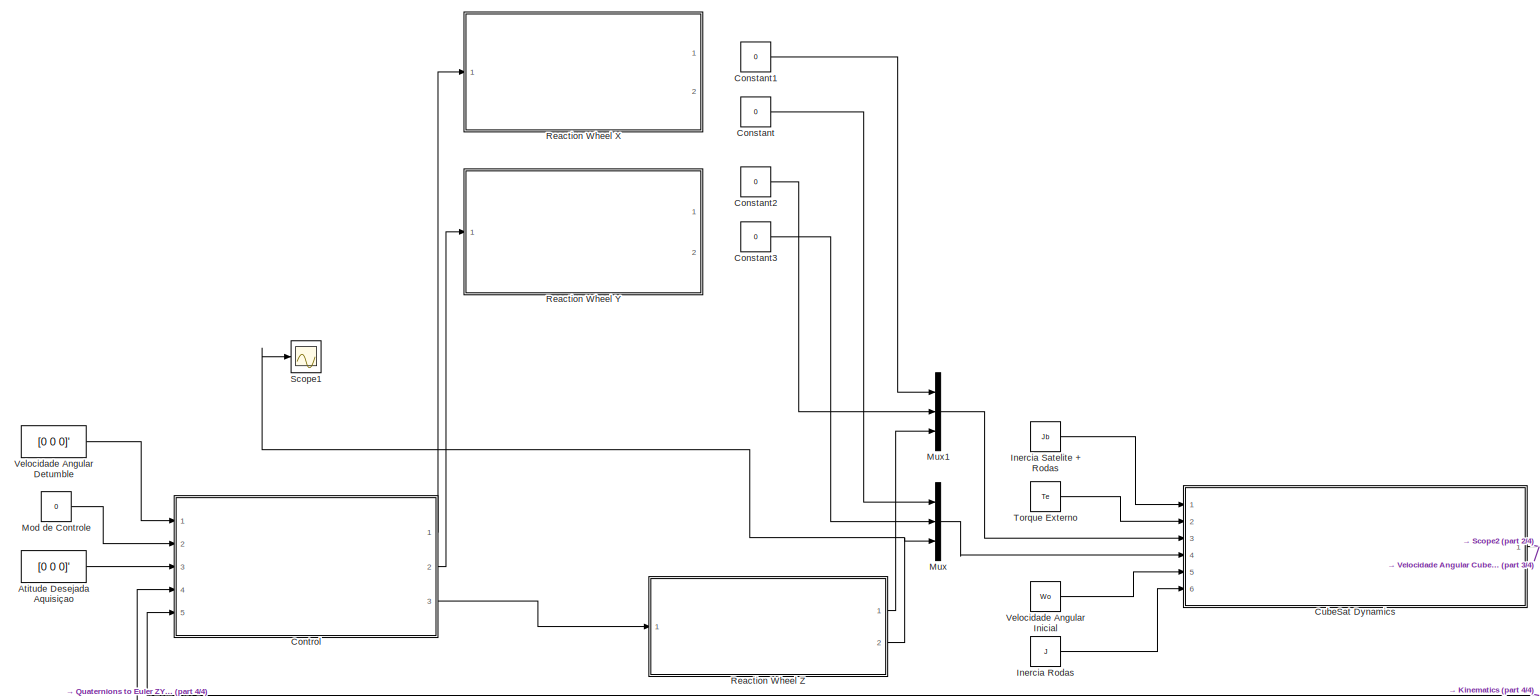
[diagram: root canvas - part 1/4, full width, middle band]
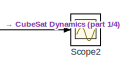
[diagram: root canvas - part 2/4, middle right region]
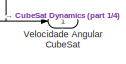
[diagram: root canvas - part 3/4, middle right region]
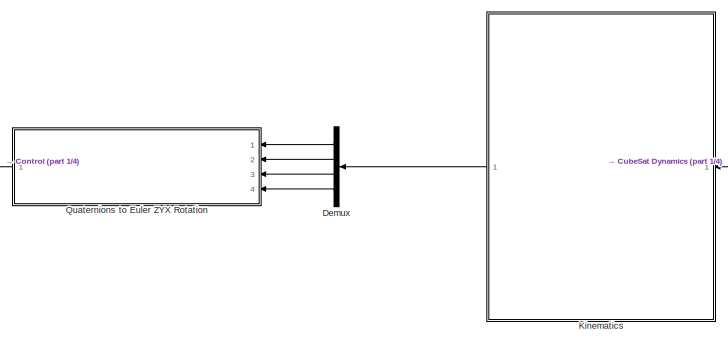
[diagram: root canvas - part 4/4, bottom center region]
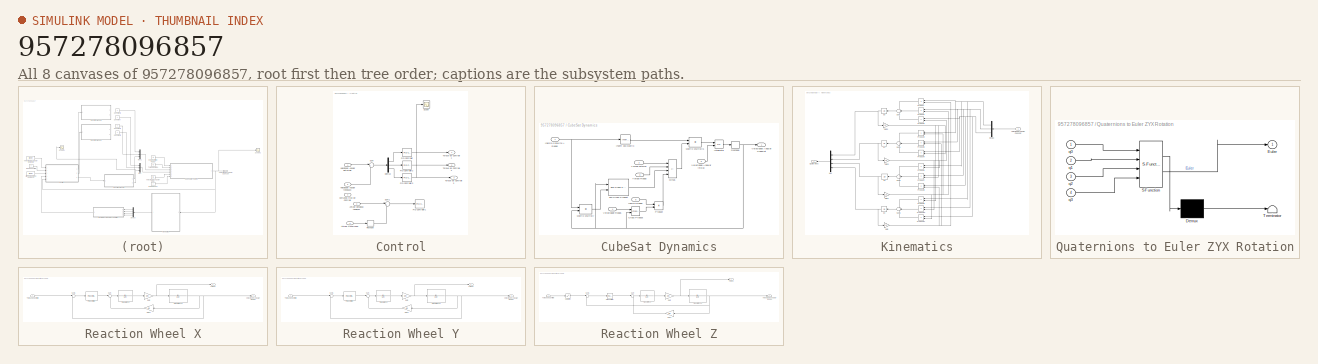
[diagram: thumbnail index - all 8 canvases of the model, root first then tree order]
MODEL slx_957278096857
KIND model
CONFIG AbsTol = auto
CONFIG EnableMultiTasking = off
CONFIG FixedStep = auto
CONFIG MaxStep = auto
CONFIG MinStep = auto
CONFIG RelTol = 1e-3
CONFIG SampleTimeConstraint = Unconstrained
CONFIG Solver = VariableStepAuto
CONFIG SolverName = VariableStepAuto
CONFIG StartTime = 0.0
CONFIG StopTime = 10.0
BLOCK [Constant] Atitude Desejada Aquisiçao
  Value = [0 0 0]'
BLOCK [Constant] Constant
  Value = 0
BLOCK [Constant] Constant1
  Value = 0
BLOCK [Constant] Constant2
  Value = 0
BLOCK [Constant] Constant3
  Value = 0
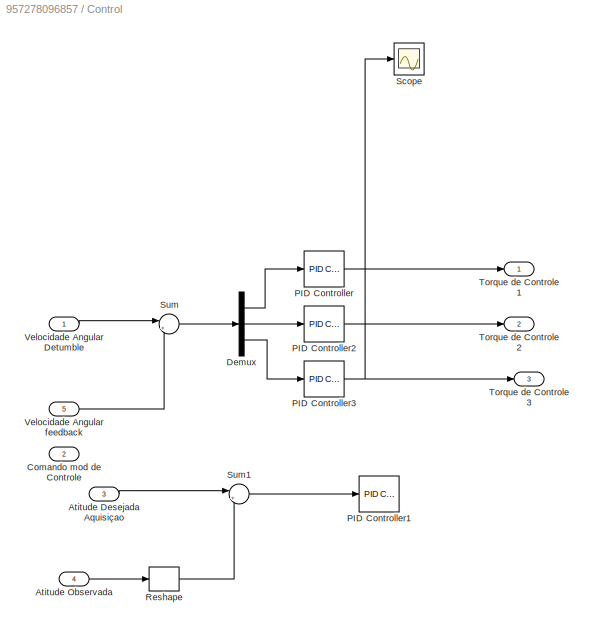
BLOCK [SubSystem] Control
  Ports = [5, 3]
  RequestExecContextInheritance = off
BLOCK [Inport] Control/Atitude Desejada Aquisiçao
  Port = 3
BLOCK [Inport] Control/Atitude Observada
  Port = 4
BLOCK [Inport] Control/Comando mod de Controle
  Port = 2
BLOCK [Demux] Control/Demux
  Outputs = 3
  Ports = [1, 3]
BLOCK [Reference] Control/PID Controller  REF=simulink/Continuous/PID Controller
  Ports = [1, 1]
  SourceBlock = simulink/Continuous/PID Controller
  SourceProductBaseCode = SL
  SourceType = PID 1dof
BLOCK [Reference] Control/PID Controller1  REF=simulink/Continuous/PID Controller
  Ports = [1, 1]
  SourceBlock = simulink/Continuous/PID Controller
  SourceProductBaseCode = SL
  SourceType = PID 1dof
BLOCK [Reference] Control/PID Controller2  REF=simulink/Continuous/PID Controller
  Ports = [1, 1]
  SourceBlock = simulink/Continuous/PID Controller
  SourceProductBaseCode = SL
  SourceType = PID 1dof
BLOCK [Reference] Control/PID Controller3  REF=simulink/Continuous/PID Controller
  Ports = [1, 1]
  SourceBlock = simulink/Continuous/PID Controller
  SourceProductBaseCode = SL
  SourceType = PID 1dof
BLOCK [Reshape] Control/Reshape
  OutputDimensionality = Column vector (2-D)
  Ports = [1, 1]
BLOCK [Scope] Control/Scope
  Floating = off
  NumInputPorts = 1
  Ports = [1]
  ScopeSpecificationString = Simulink.scopes.TimeScopeBlockCfg('CurrentConfiguration', extmgr.ConfigurationSet(extmgr.Configuration('Core','General UI',true),extmgr.Configuration('Core','Source UI',true),extmgr.Configuration('Sources','WiredSimulink',true,'DataLoggingVariableName','ScopeData1'),extmgr.Configuration('Visuals','Time Domain',true,'SerializedDisplays',{struct('MinYLimReal','1335691.72939','MaxYLimReal','1833959.8...<+1447ch>
BLOCK [Sum] Control/Sum
  Inputs = |+-
  Ports = [2, 1]
BLOCK [Sum] Control/Sum1
  Inputs = |+-
  Ports = [2, 1]
BLOCK [Outport] Control/Torque de Controle 1
BLOCK [Outport] Control/Torque de Controle 2
  Port = 2
BLOCK [Outport] Control/Torque de Controle 3
  Port = 3
BLOCK [Inport] Control/Velocidade Angular Detumble
BLOCK [Inport] Control/Velocidade Angular feedback
  Port = 5
BLOCK [SubSystem] CubeSat Dynamics
  Ports = [6, 1]
  RequestExecContextInheritance = off
BLOCK [Reference] CubeSat Dynamics/3x3 Cross Product  REF=sharedutil/3x3 Cross Product
  Ports = [2, 1]
  SourceBlock = sharedutil/3x3 Cross Product
  SourceProductBaseCode = AE,PW,MT,VE,VP
  SourceType = CrossProduct
BLOCK [Reference] CubeSat Dynamics/Cross Product  REF=vrlib/Utilities/Cross Product
  Ports = [2, 1]
  SourceBlock = vrlib/Utilities/Cross Product
  SourceProductBaseCode = SL
  SourceType = Cross Product
BLOCK [Inport] CubeSat Dynamics/Inercia Rodas
  Port = 6
BLOCK [Inport] CubeSat Dynamics/Inercia Satelite + Rodas
BLOCK [Integrator] CubeSat Dynamics/Integrator
  InitialConditionSource = external
  Ports = [2, 1]
BLOCK [Reference] CubeSat Dynamics/Invert 3x3 Matrix  REF=aerolibutil/Invert 
3x3 Matrix
  Ports = [1, 1]
  SourceBlock = aerolibutil/Invert \n3x3 Matrix
  SourceProductBaseCode = AE
  SourceType = Invert 3x3 Matrix
BLOCK [Product] CubeSat Dynamics/Matrix Multiply
  Multiplication = Matrix(*)
  Ports = [2, 1]
BLOCK [Product] CubeSat Dynamics/Matrix Multiply1
  Multiplication = Matrix(*)
  Ports = [2, 1]
BLOCK [Sum] CubeSat Dynamics/Minus
  IconShape = rectangular
  Inputs = +---
  Ports = [4, 1]
BLOCK [Product] CubeSat Dynamics/Product
  Ports = [2, 1]
BLOCK [Reshape] CubeSat Dynamics/Reshape
  OutputDimensionality = Column vector (2-D)
  OutputDimensions = [,1]
  Ports = [1, 1]
BLOCK [Inport] CubeSat Dynamics/Torque Rodas
  Port = 3
BLOCK [Inport] CubeSat Dynamics/Torque externo
  Port = 2
BLOCK [Outport] CubeSat Dynamics/Velocidade Angular CubeSat
BLOCK [Inport] CubeSat Dynamics/Velocidade Angular inicial
  Port = 5
BLOCK [Inport] CubeSat Dynamics/Velocidade Rodas
  Port = 4
BLOCK [Demux] Demux
  Ports = [1, 4]
BLOCK [Constant] Inercia Rodas
  Value = J
BLOCK [Constant] Inercia Satelite + Rodas
  Value = Jb
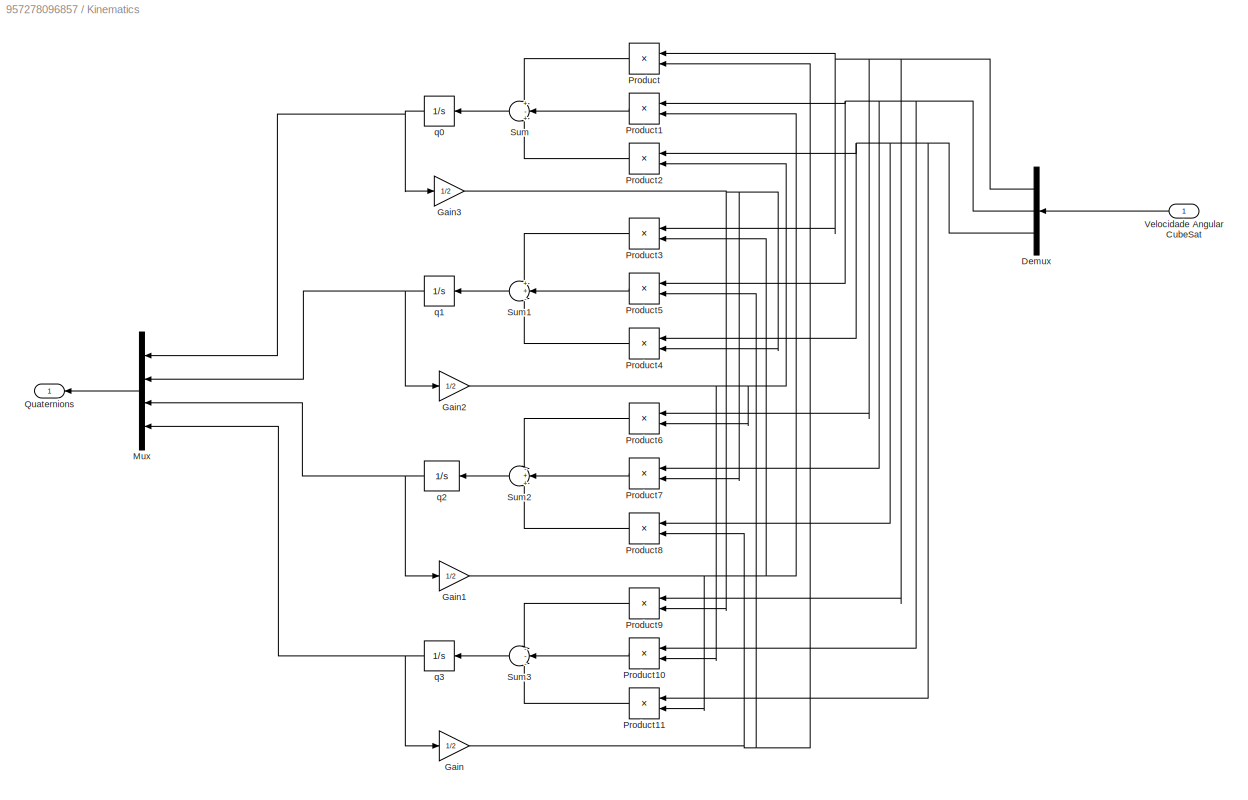
BLOCK [SubSystem] Kinematics
  Ports = [1, 1]
  RequestExecContextInheritance = off
BLOCK [Demux] Kinematics/Demux
  Outputs = 3
  Ports = [1, 3]
BLOCK [Gain] Kinematics/Gain
  Gain = 1/2
BLOCK [Gain] Kinematics/Gain1
  Gain = 1/2
BLOCK [Gain] Kinematics/Gain2
  Gain = 1/2
BLOCK [Gain] Kinematics/Gain3
  Gain = 1/2
BLOCK [Mux] Kinematics/Mux
  DisplayOption = bar
  Ports = [4, 1]
BLOCK [Product] Kinematics/Product
  Ports = [2, 1]
BLOCK [Product] Kinematics/Product1
  Ports = [2, 1]
BLOCK [Product] Kinematics/Product10
  Ports = [2, 1]
BLOCK [Product] Kinematics/Product11
  Ports = [2, 1]
BLOCK [Product] Kinematics/Product2
  Ports = [2, 1]
BLOCK [Product] Kinematics/Product3
  Ports = [2, 1]
BLOCK [Product] Kinematics/Product4
  Ports = [2, 1]
BLOCK [Product] Kinematics/Product5
  Ports = [2, 1]
BLOCK [Product] Kinematics/Product6
  Ports = [2, 1]
BLOCK [Product] Kinematics/Product7
  Ports = [2, 1]
BLOCK [Product] Kinematics/Product8
  Ports = [2, 1]
BLOCK [Product] Kinematics/Product9
  Ports = [2, 1]
BLOCK [Outport] Kinematics/Quaternions
BLOCK [Sum] Kinematics/Sum
  Inputs = +-+
  Ports = [3, 1]
BLOCK [Sum] Kinematics/Sum1
  Inputs = ++-
  Ports = [3, 1]
BLOCK [Sum] Kinematics/Sum2
  Inputs = -++
  Ports = [3, 1]
BLOCK [Sum] Kinematics/Sum3
  Inputs = ---
  Ports = [3, 1]
BLOCK [Inport] Kinematics/Velocidade Angular CubeSat
BLOCK [Integrator] Kinematics/q0
  InitialCondition = -1
  Ports = [1, 1]
BLOCK [Integrator] Kinematics/q1
  Ports = [1, 1]
BLOCK [Integrator] Kinematics/q2
  Ports = [1, 1]
BLOCK [Integrator] Kinematics/q3
  Ports = [1, 1]
BLOCK [Constant] Mod de Controle
  Value = 0
BLOCK [Mux] Mux
  DisplayOption = bar
  Inputs = 3
  Ports = [3, 1]
BLOCK [Mux] Mux1
  DisplayOption = bar
  Inputs = 3
  Ports = [3, 1]
BLOCK [SubSystem] Quaternions to Euler ZYX Rotation
  ErrorFcn = Stateflow.Translate.translate
  PermitHierarchicalResolution = ExplicitOnly
  Ports = [4, 1]
  RequestExecContextInheritance = off
  SFBlockType = MATLAB Function
  TreatAsAtomicUnit = on
BLOCK [Demux] Quaternions to Euler ZYX Rotation/ Demux 
  Outputs = 1
  Ports = [1, 1]
BLOCK [S-Function] Quaternions to Euler ZYX Rotation/ SFunction 
  EnableBusSupport = on
  FunctionName = sf_sfun
  PortCounts = [4 2]
  Ports = [4, 2]
  SFcnIsStateOwnerBlock = off
  SFunctionDeploymentMode = off
  Tag = Stateflow S-Function 2
BLOCK [Terminator] Quaternions to Euler ZYX Rotation/ Terminator 
BLOCK [Outport] Quaternions to Euler ZYX Rotation/Euler
BLOCK [Inport] Quaternions to Euler ZYX Rotation/q0
BLOCK [Inport] Quaternions to Euler ZYX Rotation/q1
  Port = 2
BLOCK [Inport] Quaternions to Euler ZYX Rotation/q2
  Port = 3
BLOCK [Inport] Quaternions to Euler ZYX Rotation/q3
  Port = 4
BLOCK [SubSystem] Reaction Wheel X
  Ports = [1, 2]
  RequestExecContextInheritance = off
BLOCK [Gain] Reaction Wheel X/Gain
  Gain = Km
BLOCK [Gain] Reaction Wheel X/Gain1
  Gain = Kb
  NameLocation = top
BLOCK [Reference] Reaction Wheel X/PID Controller  REF=simulink/Continuous/PID Controller
  Ports = [1, 1]
  SourceBlock = simulink/Continuous/PID Controller
  SourceProductBaseCode = SL
  SourceType = PID 1dof
BLOCK [Sum] Reaction Wheel X/Sum
  Inputs = |+-
  Ports = [2, 1]
BLOCK [Sum] Reaction Wheel X/Sum1
  Inputs = |+-
  Ports = [2, 1]
BLOCK [Outport] Reaction Wheel X/Torque
BLOCK [Inport] Reaction Wheel X/Torque de Controle
BLOCK [TransferFcn] Reaction Wheel X/Transfer Fcn
  Denominator = [L R]
BLOCK [TransferFcn] Reaction Wheel X/Transfer Fcn1
  Denominator = [J Kf]
BLOCK [Outport] Reaction Wheel X/Velocidade Angular Rodas
  Port = 2
BLOCK [SubSystem] Reaction Wheel Y
  Ports = [1, 2]
  RequestExecContextInheritance = off
BLOCK [Gain] Reaction Wheel Y/Gain
  Gain = Km
BLOCK [Gain] Reaction Wheel Y/Gain1
  Gain = Kb
  NameLocation = top
BLOCK [Reference] Reaction Wheel Y/PID Controller  REF=simulink/Continuous/PID Controller
  Ports = [1, 1]
  SourceBlock = simulink/Continuous/PID Controller
  SourceProductBaseCode = SL
  SourceType = PID 1dof
BLOCK [Sum] Reaction Wheel Y/Sum
  Inputs = |+-
  Ports = [2, 1]
BLOCK [Sum] Reaction Wheel Y/Sum1
  Inputs = |+-
  Ports = [2, 1]
BLOCK [Outport] Reaction Wheel Y/Torque
BLOCK [Inport] Reaction Wheel Y/Torque de Controle
BLOCK [TransferFcn] Reaction Wheel Y/Transfer Fcn
  Denominator = [L R]
BLOCK [TransferFcn] Reaction Wheel Y/Transfer Fcn1
  Denominator = [J Kf]
BLOCK [Outport] Reaction Wheel Y/Velocidade Angular Rodas
  Port = 2
BLOCK [SubSystem] Reaction Wheel Z
  Ports = [1, 2]
  RequestExecContextInheritance = off
BLOCK [Gain] Reaction Wheel Z/Gain
  Gain = Km
BLOCK [Gain] Reaction Wheel Z/Gain1
  Gain = Kb
  NameLocation = top
BLOCK [Reference] Reaction Wheel Z/PID Controller  REF=simulink/Continuous/PID Controller
  Ports = [1, 1]
  SourceBlock = simulink/Continuous/PID Controller
  SourceProductBaseCode = SL
  SourceType = PID 1dof
BLOCK [Saturate] Reaction Wheel Z/Saturation
  LowerLimit = -628.3
  UpperLimit = 628.3
BLOCK [Sum] Reaction Wheel Z/Sum
  Inputs = |+-
  Ports = [2, 1]
BLOCK [Sum] Reaction Wheel Z/Sum1
  Inputs = |+-
  Ports = [2, 1]
BLOCK [Outport] Reaction Wheel Z/Torque
BLOCK [Inport] Reaction Wheel Z/Torque de Controle
BLOCK [TransferFcn] Reaction Wheel Z/Transfer Fcn
  Denominator = [L R]
BLOCK [TransferFcn] Reaction Wheel Z/Transfer Fcn1
  Denominator = [J Kf]
BLOCK [Outport] Reaction Wheel Z/Velocidade Angular Rodas
  Port = 2
BLOCK [Scope] Scope1
  Floating = off
  NumInputPorts = 1
  Ports = [1]
  ScopeSpecificationString = Simulink.scopes.TimeScopeBlockCfg('CurrentConfiguration', extmgr.ConfigurationSet(extmgr.Configuration('Core','General UI',true),extmgr.Configuration('Core','Source UI',true),extmgr.Configuration('Sources','WiredSimulink',true,'DataLoggingVariableName','ScopeData1'),extmgr.Configuration('Visuals','Time Domain',true,'SerializedDisplays',{struct('MinYLimReal','-622.34','MaxYLimReal','1318.34369','YL...<+1469ch>
BLOCK [Scope] Scope2
  Floating = off
  NumInputPorts = 1
  Ports = [1]
  ScopeSpecificationString = Simulink.scopes.TimeScopeBlockCfg('CurrentConfiguration', extmgr.ConfigurationSet(extmgr.Configuration('Core','General UI',true),extmgr.Configuration('Core','Source UI',true),extmgr.Configuration('Sources','WiredSimulink',true,'DataLoggingVariableName','ScopeData2'),extmgr.Configuration('Visuals','Time Domain',true,'SerializedDisplays',{struct('MinYLimReal','-7.46512','MaxYLimReal','12.18076','YLa...<+1529ch>
BLOCK [Constant] Torque Externo
  Value = Te
BLOCK [Outport] Velocidade Angular CubeSat
BLOCK [Constant] Velocidade Angular Detumble
  Value = [0 0 0]'
BLOCK [Constant] Velocidade Angular Inicial
  Value = Wo
LINE Atitude Desejada Aquisiçao:1 -> Control:3
LINE Constant1:1 -> Mux1:1
LINE Constant2:1 -> Mux1:2
LINE Constant3:1 -> Mux:2
LINE Constant:1 -> Mux:1
LINE Control/Atitude Desejada Aquisiçao:1 -> Control/Sum1:1
LINE Control/Atitude Observada:1 -> Control/Reshape:1
LINE Control/Demux:1 -> Control/PID Controller:1
LINE Control/Demux:2 -> Control/PID Controller2:1
LINE Control/Demux:3 -> Control/PID Controller3:1
LINE Control/PID Controller2:1 -> Control/Torque de Controle 2:1
NET Control/PID Controller3:1 -> Control/Scope:1, Control/Torque de Controle 3:1
LINE Control/PID Controller:1 -> Control/Torque de Controle 1:1
LINE Control/Reshape:1 -> Control/Sum1:2
LINE Control/Sum1:1 -> Control/PID Controller1:1
LINE Control/Sum:1 -> Control/Demux:1
LINE Control/Velocidade Angular Detumble:1 -> Control/Sum:1
LINE Control/Velocidade Angular feedback:1 -> Control/Sum:2
LINE Control:1 -> Reaction Wheel X:1
LINE Control:2 -> Reaction Wheel Y:1
LINE Control:3 -> Reaction Wheel Z:1
LINE CubeSat Dynamics/3x3 Cross Product:1 -> CubeSat Dynamics/Minus:3
LINE CubeSat Dynamics/Cross Product:1 -> CubeSat Dynamics/Product:2
LINE CubeSat Dynamics/Inercia Rodas:1 -> CubeSat Dynamics/Product:1
NET CubeSat Dynamics/Inercia Satelite + Rodas:1 -> CubeSat Dynamics/Invert 3x3 Matrix:1, CubeSat Dynamics/Matrix Multiply:1
LINE CubeSat Dynamics/Integrator:1 -> CubeSat Dynamics/Reshape:1
LINE CubeSat Dynamics/Invert 3x3 Matrix:1 -> CubeSat Dynamics/Matrix Multiply1:1
LINE CubeSat Dynamics/Matrix Multiply1:1 -> CubeSat Dynamics/Integrator:1
LINE CubeSat Dynamics/Matrix Multiply:1 -> CubeSat Dynamics/3x3 Cross Product:2
LINE CubeSat Dynamics/Minus:1 -> CubeSat Dynamics/Matrix Multiply1:2
LINE CubeSat Dynamics/Product:1 -> CubeSat Dynamics/Minus:4
NET CubeSat Dynamics/Reshape:1 -> CubeSat Dynamics/3x3 Cross Product:1, CubeSat Dynamics/Cross Product:2, CubeSat Dynamics/Matrix Multiply:2, CubeSat Dynamics/Velocidade Angular CubeSat:1
LINE CubeSat Dynamics/Torque Rodas:1 -> CubeSat Dynamics/Minus:2
LINE CubeSat Dynamics/Torque externo:1 -> CubeSat Dynamics/Minus:1
LINE CubeSat Dynamics/Velocidade Angular inicial:1 -> CubeSat Dynamics/Integrator:2
LINE CubeSat Dynamics/Velocidade Rodas:1 -> CubeSat Dynamics/Cross Product:1
NET CubeSat Dynamics:1 -> Control:5, Kinematics:1, Scope2:1, Velocidade Angular CubeSat:1
LINE Demux:1 -> Quaternions to Euler ZYX Rotation:1
LINE Demux:2 -> Quaternions to Euler ZYX Rotation:2
LINE Demux:3 -> Quaternions to Euler ZYX Rotation:3
LINE Demux:4 -> Quaternions to Euler ZYX Rotation:4
LINE Inercia Rodas:1 -> CubeSat Dynamics:6
LINE Inercia Satelite + Rodas:1 -> CubeSat Dynamics:1
NET Kinematics/Demux:1 -> Kinematics/Product3:1, Kinematics/Product6:1, Kinematics/Product9:1, Kinematics/Product:1
NET Kinematics/Demux:2 -> Kinematics/Product10:1, Kinematics/Product1:1, Kinematics/Product5:1, Kinematics/Product7:1
NET Kinematics/Demux:3 -> Kinematics/Product11:1, Kinematics/Product2:1, Kinematics/Product4:1, Kinematics/Product8:1
NET Kinematics/Gain1:1 -> Kinematics/Product11:2, Kinematics/Product1:2, Kinematics/Product3:2
NET Kinematics/Gain2:1 -> Kinematics/Product10:2, Kinematics/Product2:2, Kinematics/Product6:2
NET Kinematics/Gain3:1 -> Kinematics/Product4:2, Kinematics/Product7:2, Kinematics/Product9:2
NET Kinematics/Gain:1 -> Kinematics/Product5:2, Kinematics/Product8:2, Kinematics/Product:2
LINE Kinematics/Mux:1 -> Kinematics/Quaternions:1
LINE Kinematics/Product10:1 -> Kinematics/Sum3:2
LINE Kinematics/Product11:1 -> Kinematics/Sum3:3
LINE Kinematics/Product1:1 -> Kinematics/Sum:2
LINE Kinematics/Product2:1 -> Kinematics/Sum:3
LINE Kinematics/Product3:1 -> Kinematics/Sum1:1
LINE Kinematics/Product4:1 -> Kinematics/Sum1:3
LINE Kinematics/Product5:1 -> Kinematics/Sum1:2
LINE Kinematics/Product6:1 -> Kinematics/Sum2:1
LINE Kinematics/Product7:1 -> Kinematics/Sum2:2
LINE Kinematics/Product8:1 -> Kinematics/Sum2:3
LINE Kinematics/Product9:1 -> Kinematics/Sum3:1
LINE Kinematics/Product:1 -> Kinematics/Sum:1
LINE Kinematics/Sum1:1 -> Kinematics/q1:1
LINE Kinematics/Sum2:1 -> Kinematics/q2:1
LINE Kinematics/Sum3:1 -> Kinematics/q3:1
LINE Kinematics/Sum:1 -> Kinematics/q0:1
LINE Kinematics/Velocidade Angular CubeSat:1 -> Kinematics/Demux:1
NET Kinematics/q0:1 -> Kinematics/Gain3:1, Kinematics/Mux:1
NET Kinematics/q1:1 -> Kinematics/Gain2:1, Kinematics/Mux:2
NET Kinematics/q2:1 -> Kinematics/Gain1:1, Kinematics/Mux:3
NET Kinematics/q3:1 -> Kinematics/Gain:1, Kinematics/Mux:4
LINE Kinematics:1 -> Demux:1
LINE Mod de Controle:1 -> Control:2
LINE Mux1:1 -> CubeSat Dynamics:3
LINE Mux:1 -> CubeSat Dynamics:4
LINE Quaternions to Euler ZYX Rotation:1 -> Control:4
LINE Reaction Wheel X/Gain1:1 -> Reaction Wheel X/Sum:2
NET Reaction Wheel X/Gain:1 -> Reaction Wheel X/Torque:1, Reaction Wheel X/Transfer Fcn1:1
LINE Reaction Wheel X/PID Controller:1 -> Reaction Wheel X/Sum:1
LINE Reaction Wheel X/Sum1:1 -> Reaction Wheel X/PID Controller:1
LINE Reaction Wheel X/Sum:1 -> Reaction Wheel X/Transfer Fcn:1
LINE Reaction Wheel X/Torque de Controle:1 -> Reaction Wheel X/Sum1:1
NET Reaction Wheel X/Transfer Fcn1:1 -> Reaction Wheel X/Gain1:1, Reaction Wheel X/Sum1:2, Reaction Wheel X/Velocidade Angular Rodas:1
LINE Reaction Wheel X/Transfer Fcn:1 -> Reaction Wheel X/Gain:1
LINE Reaction Wheel Y/Gain1:1 -> Reaction Wheel Y/Sum:2
NET Reaction Wheel Y/Gain:1 -> Reaction Wheel Y/Torque:1, Reaction Wheel Y/Transfer Fcn1:1
LINE Reaction Wheel Y/PID Controller:1 -> Reaction Wheel Y/Sum:1
LINE Reaction Wheel Y/Sum1:1 -> Reaction Wheel Y/PID Controller:1
LINE Reaction Wheel Y/Sum:1 -> Reaction Wheel Y/Transfer Fcn:1
LINE Reaction Wheel Y/Torque de Controle:1 -> Reaction Wheel Y/Sum1:1
NET Reaction Wheel Y/Transfer Fcn1:1 -> Reaction Wheel Y/Gain1:1, Reaction Wheel Y/Sum1:2, Reaction Wheel Y/Velocidade Angular Rodas:1
LINE Reaction Wheel Y/Transfer Fcn:1 -> Reaction Wheel Y/Gain:1
LINE Reaction Wheel Z/Gain1:1 -> Reaction Wheel Z/Sum:2
NET Reaction Wheel Z/Gain:1 -> Reaction Wheel Z/Torque:1, Reaction Wheel Z/Transfer Fcn1:1
LINE Reaction Wheel Z/PID Controller:1 -> Reaction Wheel Z/Sum:1
LINE Reaction Wheel Z/Saturation:1 -> Reaction Wheel Z/Sum1:1
LINE Reaction Wheel Z/Sum1:1 -> Reaction Wheel Z/PID Controller:1
LINE Reaction Wheel Z/Sum:1 -> Reaction Wheel Z/Transfer Fcn:1
LINE Reaction Wheel Z/Torque de Controle:1 -> Reaction Wheel Z/Saturation:1
NET Reaction Wheel Z/Transfer Fcn1:1 -> Reaction Wheel Z/Gain1:1, Reaction Wheel Z/Sum1:2, Reaction Wheel Z/Velocidade Angular Rodas:1
LINE Reaction Wheel Z/Transfer Fcn:1 -> Reaction Wheel Z/Gain:1
LINE Reaction Wheel Z:1 -> Mux1:3
NET Reaction Wheel Z:2 -> Mux:3, Scope1:1
LINE Torque Externo:1 -> CubeSat Dynamics:2
LINE Velocidade Angular Detumble:1 -> Control:1
LINE Velocidade Angular Inicial:1 -> CubeSat Dynamics:5
note: NET lines group one-source signal fan-out (src -> all destinations, sorted); 1:1 wires keep LINE
CHART Quaternions to Euler ZYX Rotation states=1 transitions=1
  STATE_LABEL 'eML_blk_kernel()'
  STATE_LABEL 'SCRIPT:\n\nfunction Euler = ZYX(q0, q1, q2, q3)\n\n\nC11 = (q0^2)+(q1^2)-(q2^2)-(q3^2);\nC12 = (2*(q1*q2+q0*q3));\nC13 = (2*(q1*q3-q0*q2));\n%C21 = 2*(q1*q2-q0*q3)\n%C22 = (q0^2)-(q1^2)+(q2^2)-(q3^2)\nC23 = (2*(q2*q3+q0*q1));\n%C31 = 2*(q1*q3+q0*q2)\n%C32 = 2*(q2*q3-q0*q1)\nC33 = ((q0^2)-(q1^2)-(q2^2)+(q3^2));\n\n%C = [C11 C12 C13; C21 C22 C23; C31 C32 C33]\n\n%DCM = [ctheta*calpha ctheta*salpha -stheta; sphi*sthe...<+2519ch>'
CHART  states=0 transitions=0
